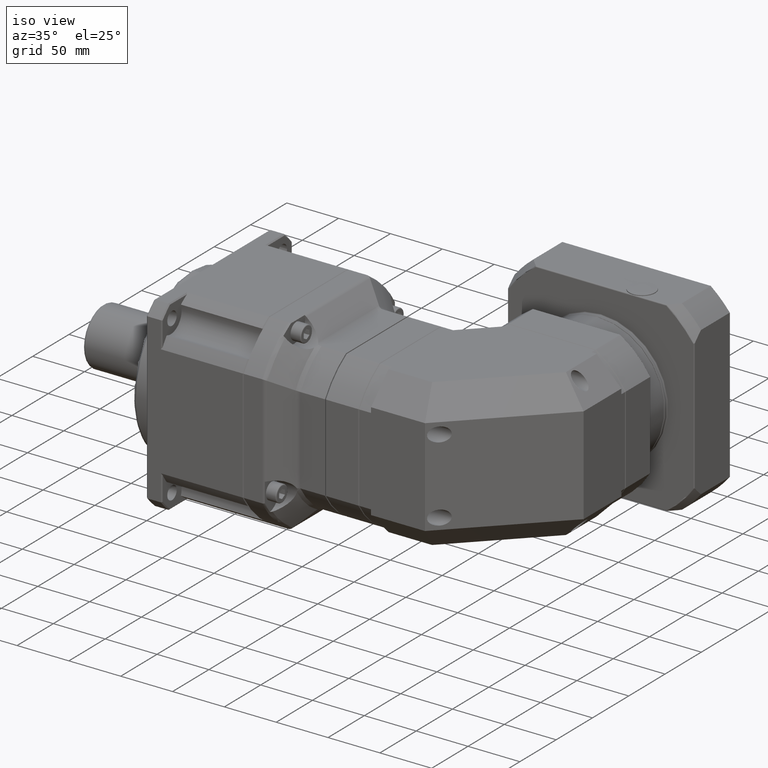
[diagram: clean part render]
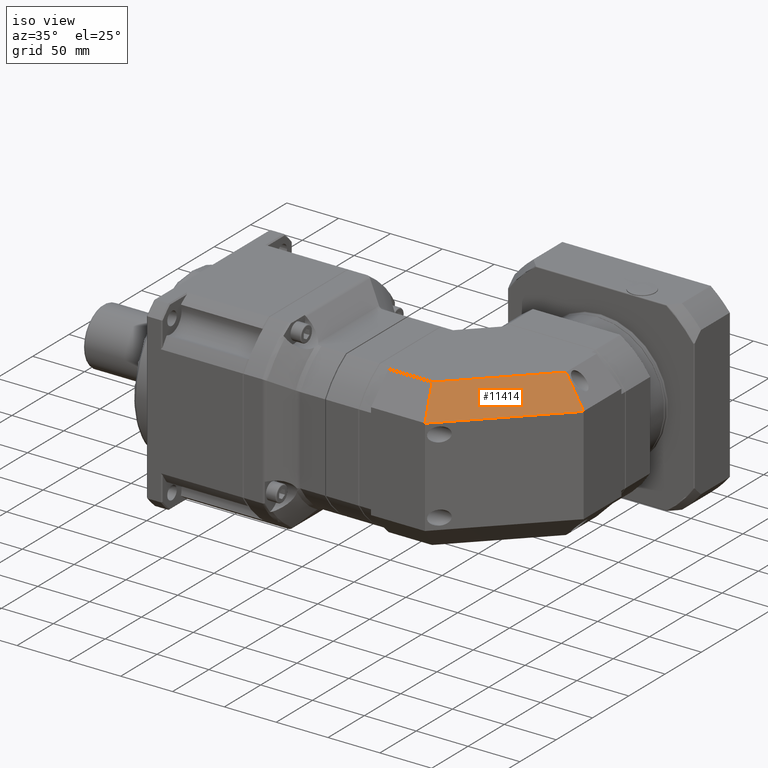
[diagram: same view with one face highlighted and labeled with its STEP entity id]
A machine part, iso view. The second image highlights one B-rep face of the part: STEP entity #11414.
In plain terms, the highlighted planar face has unit normal (0.5, -0.5, 0.7071).
Its self-contained STEP definition (entity closure, byte-faithful):
#879=LINE('',#18788,#1429);
#894=LINE('',#18821,#1444);
#899=LINE('',#18830,#1449);
#900=LINE('',#18831,#1450);
#1429=VECTOR('',#15011,35.3670181969896);
#1444=VECTOR('',#15046,35.3670181969896);
#1449=VECTOR('',#15057,127.279220613579);
#1450=VECTOR('',#15058,107.39696961967);
#1897=PLANE('',#12596);
#2831=FACE_OUTER_BOUND('',#3820,.T.);
#3820=EDGE_LOOP('',(#8922,#8923,#8924,#8925));
#5433=VERTEX_POINT('',#18780);
#5435=VERTEX_POINT('',#18786);
#5442=VERTEX_POINT('',#18818);
#5443=VERTEX_POINT('',#18820);
#6678=EDGE_CURVE('',#5433,#5435,#879,.T.);
#6695=EDGE_CURVE('',#5442,#5443,#894,.T.);
#6700=EDGE_CURVE('',#5442,#5433,#899,.T.);
#6701=EDGE_CURVE('',#5435,#5443,#900,.T.);
#8922=ORIENTED_EDGE('',*,*,#6700,.T.);
#8923=ORIENTED_EDGE('',*,*,#6678,.T.);
#8924=ORIENTED_EDGE('',*,*,#6701,.T.);
#8925=ORIENTED_EDGE('',*,*,#6695,.F.);
#11414=ADVANCED_FACE('',(#2831),#1897,.T.);
#12596=AXIS2_PLACEMENT_3D('',#18829,#15055,#15056);
#15011=DIRECTION('',(-0.678598344545847,0.28108463771482,0.678598344545847));
#15046=DIRECTION('',(-0.281084637714821,0.678598344545847,0.678598344545847));
#15055=DIRECTION('center_axis',(0.5,-0.500000000000001,0.707106781186547));
#15056=DIRECTION('ref_axis',(-0.816496580927727,-1.77635683940025E-16,0.577350269189625));
#15057=DIRECTION('',(0.707106781186548,0.707106781186547,9.53143347262049E-16));
#15058=DIRECTION('',(-0.707106781186548,-0.707106781186547,-9.53143347262049E-16));
#18780=CARTESIAN_POINT('',(294.844650275927,9.43486826521328,61.0001864042436));
#18786=CARTESIAN_POINT('',(270.844650275927,19.3759937621676,85.0001864042436));
#18788=CARTESIAN_POINT('',(294.844650275927,9.43486826521328,61.0001864042436));
#18818=CARTESIAN_POINT('',(204.844650275927,-80.5651317347867,61.0001864042435));
#18820=CARTESIAN_POINT('',(194.903524778973,-56.5651317347867,85.0001864042435));
#18821=CARTESIAN_POINT('',(204.844650275927,-80.5651317347867,61.0001864042435));
#18829=CARTESIAN_POINT('Origin',(263.859368901688,-4.57985036054815,73.0001864042436));
#18830=CARTESIAN_POINT('',(272.344650275927,-13.0651317347867,61.0001864042436));
#18831=CARTESIAN_POINT('',(255.37408752745,3.90543101369041,85.0001864042436));